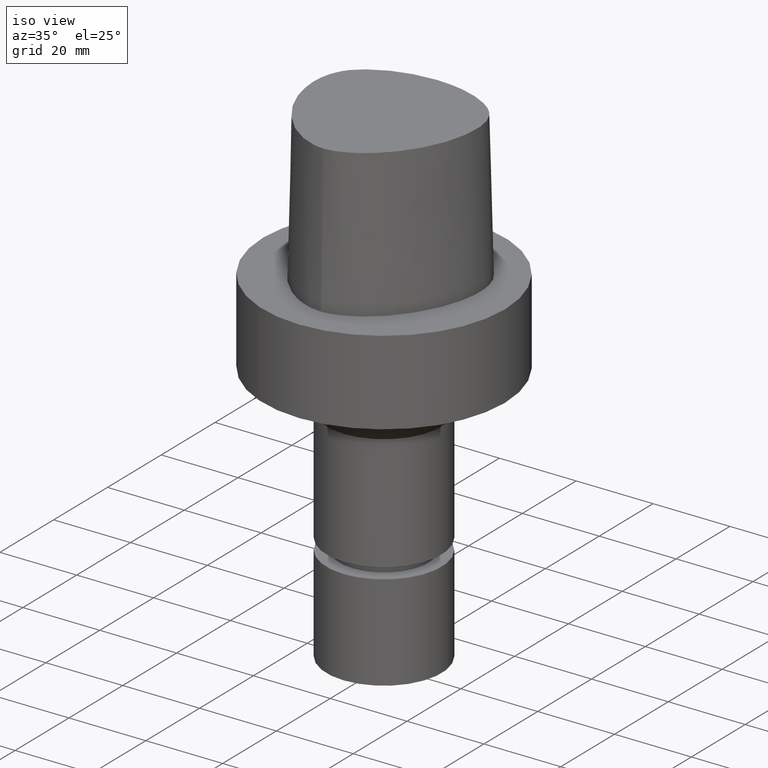
[diagram: clean part render]
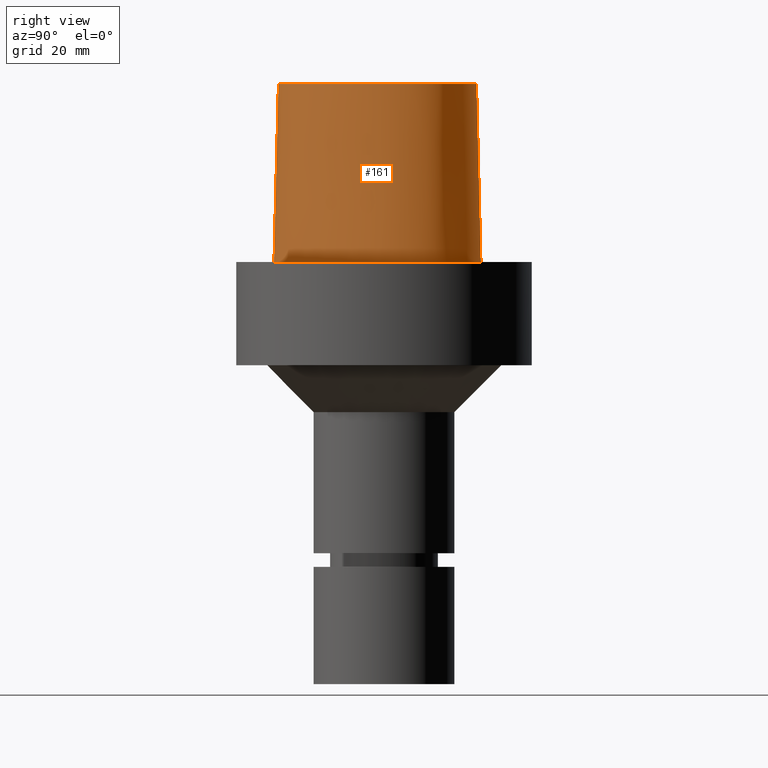
[diagram: tour spotlight — one face highlighted and labeled with its STEP entity id]
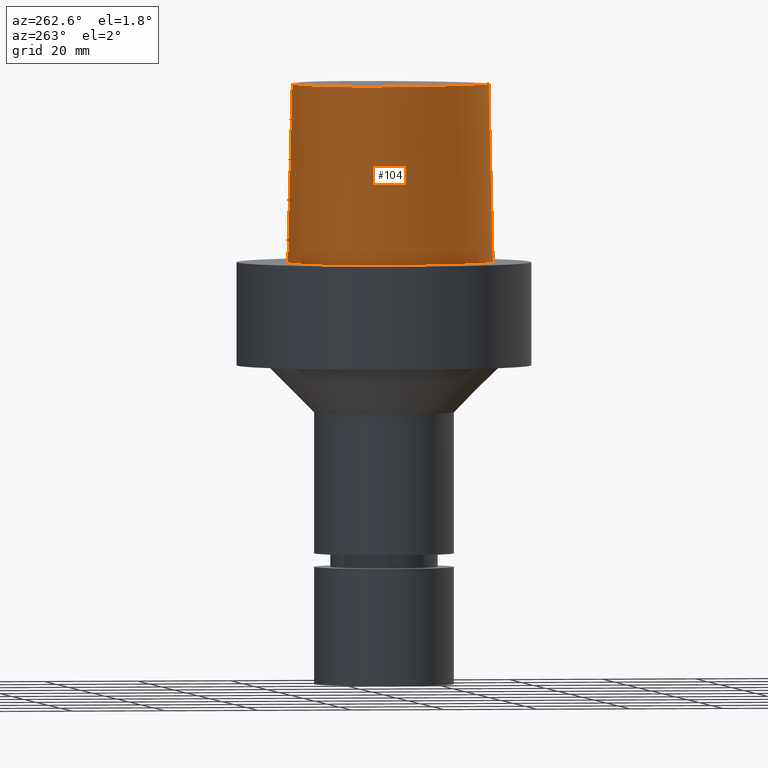
[diagram: tour spotlight — one face highlighted and labeled with its STEP entity id]
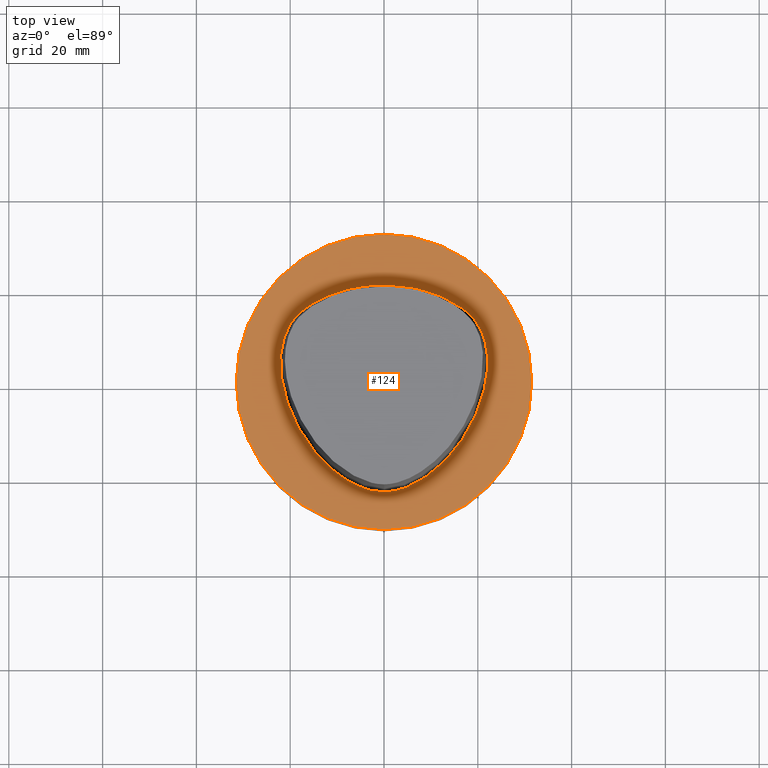
[diagram: tour spotlight — one face highlighted and labeled with its STEP entity id]
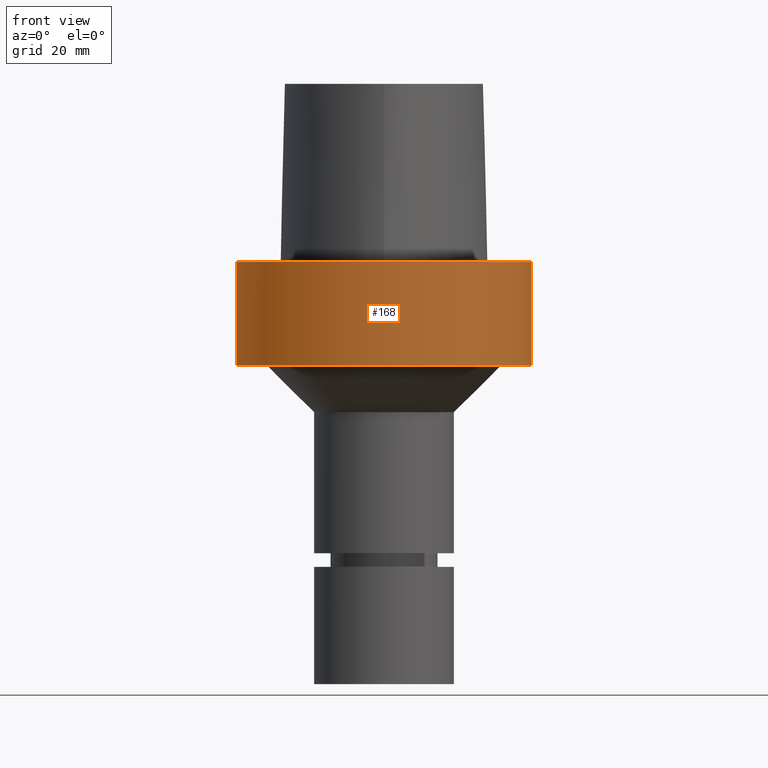
[diagram: tour spotlight — one face highlighted and labeled with its STEP entity id]
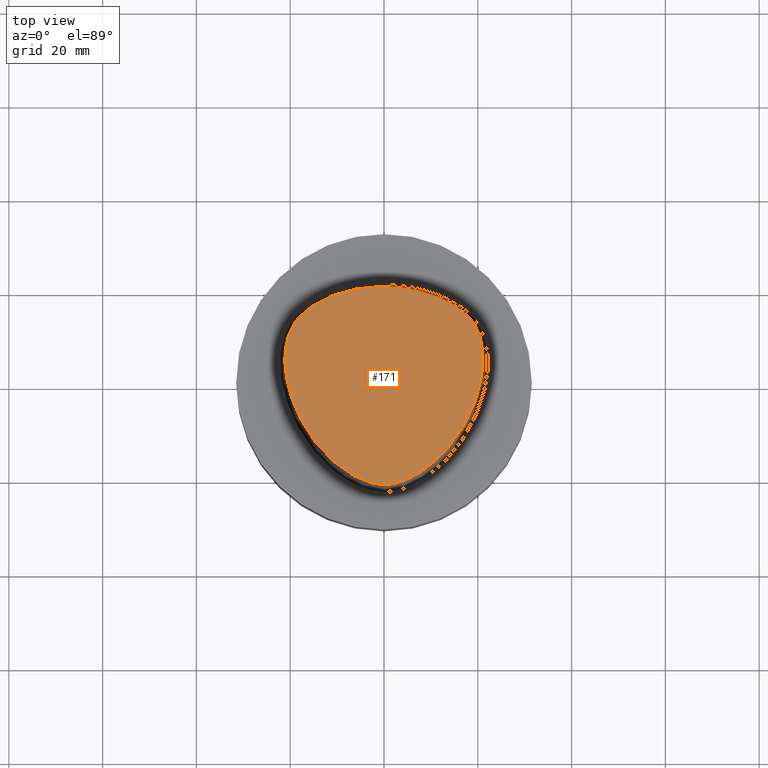
[diagram: tour spotlight — one face highlighted and labeled with its STEP entity id]
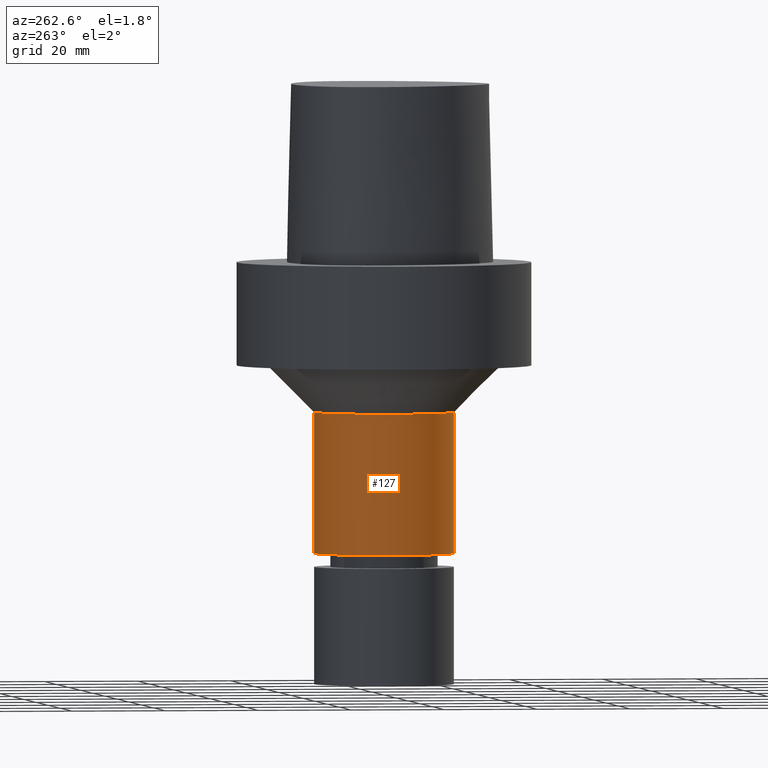
[diagram: tour spotlight — one face highlighted and labeled with its STEP entity id]
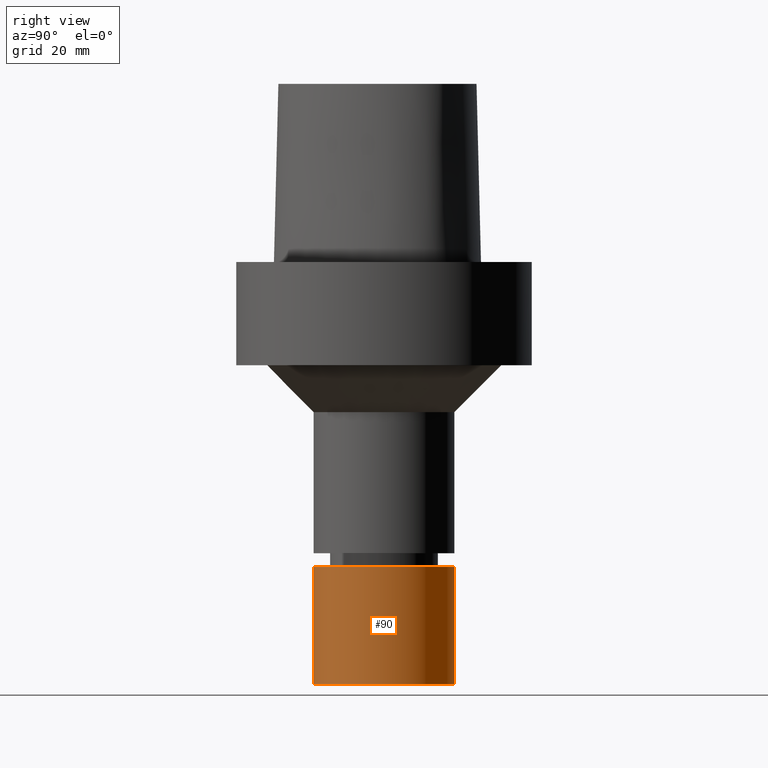
[diagram: tour spotlight — one face highlighted and labeled with its STEP entity id]
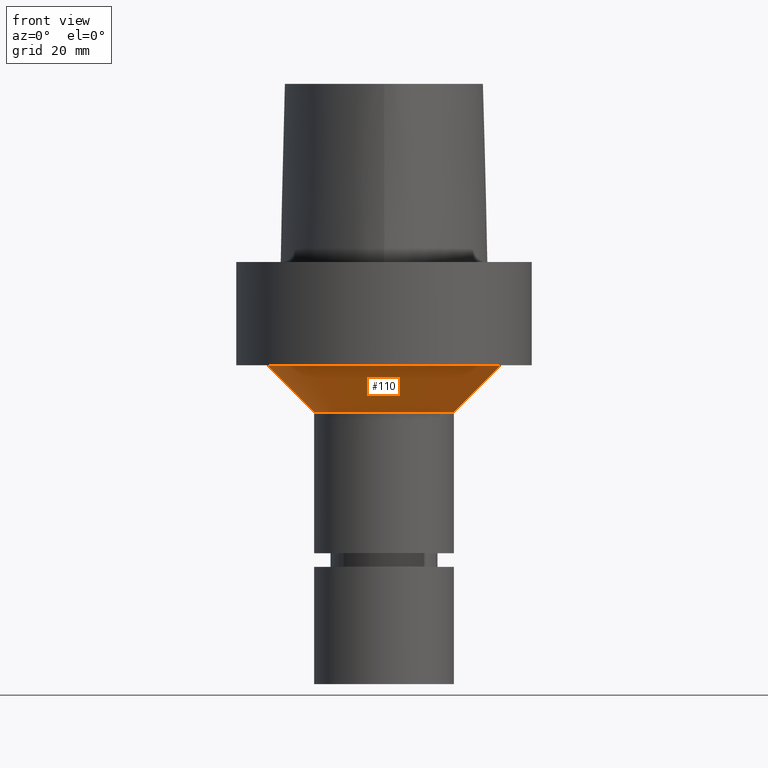
[diagram: tour spotlight — one face highlighted and labeled with its STEP entity id]
A machine part: a face-by-face anatomy tour. The part has 18 B-rep faces; the first image is the clean iso view, then the 8 largest visible faces are spotlighted one at a time (largest first), each with its STEP entity span.

Face 1 — right view, entity #161. In plain terms, the highlighted face is a freeform B-spline surface patch.
Definition (entity closure, byte-faithful):
#80=EDGE_CURVE('Unnamed[1]',#203,#204,#205,.T.);
#82=EDGE_CURVE('Unnamed[1]',#207,#208,#209,.T.);
#134=EDGE_CURVE('Unnamed[1]',#208,#204,#283,.T.);
#138=EDGE_CURVE('Unnamed[1]',#203,#207,#288,.T.);
#161=ADVANCED_FACE('Unnamed[1]',(#320),#321,.T.);
#203=VERTEX_POINT('',#364);
#204=VERTEX_POINT('',#365);
#205=LINE('',#366,#367);
#207=VERTEX_POINT('',#370);
#208=VERTEX_POINT('',#371);
#209=LINE('',#372,#373);
#283=B_SPLINE_CURVE_WITH_KNOTS('',3,(#571,#572,#573,#574,#575,#576,#577,#578,#579,#580,#581,#582,#583,#584,#585,#586,#587),.UNSPECIFIED.,.F.,.F.,(4,1,1,1,1,1,1,1,1,1,1,1,1,1,4),(-13.2302678617486,-12.816821991069,-12.4033761203893,-11.9899302497097,-11.57648437903,-11.1630385083504,-10.9563155730106,-10.7495926376707,-10.3361467669911,-9.92270089631145,-9.09580915495216,-8.26891741359287,-7.44202567223358,-7.02857980155394,-6.6151339308743),.UNSPECIFIED.);
#288=B_SPLINE_CURVE_WITH_KNOTS('',3,(#594,#595,#596,#597,#598,#599,#600,#601,#602,#603,#604,#605,#606,#607,#608,#609),.UNSPECIFIED.,.F.,.F.,(4,1,1,1,1,1,1,1,1,1,1,1,1,4),(6.61513393087476,6.99917207152274,7.48193246986995,7.96289324787093,8.45540287038584,9.10291653679981,9.67129810936083,10.1618749681153,10.6358867802489,11.1080734988593,11.6043706019633,12.09451993853,12.6985979284494,13.2302678617486),.UNSPECIFIED.);
#320=FACE_OUTER_BOUND('',#648,.T.);
#321=B_SPLINE_SURFACE_WITH_KNOTS('',3,3,((#649,#650,#651,#652),(#653,#654,#655,#656),(#657,#658,#659,#660),(#661,#662,#663,#664),(#665,#666,#667,#668),(#669,#670,#671,#672),(#673,#674,#675,#676),(#677,#678,#679,#680),(#681,#682,#683,#684),(#685,#686,#687,#688),(#689,#690,#691,#692),(#693,#694,#695,#696),(#697,#698,#699,#700),(#701,#702,#703,#704),(#705,#706,#707,#708),(#709,#710,#711,#712),(#713,#714,#715,#716)),.UNSPECIFIED.,.F.,.F.,.F.,(4,1,1,1,1,1,1,1,1,1,1,1,1,1,4),(4,4),(-13.2302678617486,-12.816821991069,-12.4033761203893,-11.9899302497097,-11.57648437903,-11.1630385083504,-10.9563155730106,-10.7495926376707,-10.3361467669911,-9.92270089631145,-9.09580915495216,-8.26891741359287,-7.44202567223358,-7.02857980155394,-6.6151339308743),(-3.8,0.0),.UNSPECIFIED.);
#364=CARTESIAN_POINT('',(0.038736923393866,-22.5191997536361,38.0));
#365=CARTESIAN_POINT('',(0.04359356758149,-23.4691235068931,7.78075697532443E-032));
#366=CARTESIAN_POINT('',(0.038736923393866,-22.5191997536361,38.0));
#367=VECTOR('',#749,38.0118715498723);
#370=CARTESIAN_POINT('',(-0.001218547003662,19.7276821925089,38.0));
#371=CARTESIAN_POINT('',(0.044682985379347,20.6765087343109,1.61778115328528E-031));
#372=CARTESIAN_POINT('',(-0.001218547003662,19.7276821925089,38.0));
#373=VECTOR('',#750,38.0118715503078);
#571=CARTESIAN_POINT('',(0.044682985379347,20.6765087343109,1.61778115328528E-031));
#572=CARTESIAN_POINT('',(1.42379272427753,20.6097915814392,8.62816615085482E-032));
#573=CARTESIAN_POINT('',(4.2230955003445,20.4837538303966,1.4791141972894E-031));
#574=CARTESIAN_POINT('',(8.47220762821777,19.6890432607088,9.86076131526265E-032));
#575=CARTESIAN_POINT('',(12.5141247708253,18.2434968480404,0.0));
#576=CARTESIAN_POINT('',(16.3038624872874,16.1734192182143,1.97215226305253E-031));
#577=CARTESIAN_POINT('',(19.1446913988473,13.7036723639434,-1.97215226305253E-031));
#578=CARTESIAN_POINT('',(20.7319894342149,11.1014620996188,0.0));
#579=CARTESIAN_POINT('',(21.7831756505763,8.28099229708081,-1.97215226305253E-031));
#580=CARTESIAN_POINT('',(22.2258240701438,4.60865440596506,0.0));
#581=CARTESIAN_POINT('',(21.7436130080666,-1.11326526354485,0.0));
#582=CARTESIAN_POINT('',(19.5519487660502,-7.95432366164584,0.0));
#583=CARTESIAN_POINT('',(14.9574167123838,-15.2089785567293,0.0));
#584=CARTESIAN_POINT('',(9.66840283021945,-20.0827414369705,-9.86076131526265E-032));
#585=CARTESIAN_POINT('',(4.51628650521788,-22.7946374572188,-9.86076131526265E-032));
#586=CARTESIAN_POINT('',(1.55867251738073,-23.4612972770043,-1.23259516440783E-032));
#587=CARTESIAN_POINT('',(0.04359356758149,-23.4691235068931,7.78075697532443E-032));
#594=CARTESIAN_POINT('',(0.038736923394311,-22.519199753636,38.0));
#595=CARTESIAN_POINT('',(1.31742058183662,-22.512662269405,38.0));
#596=CARTESIAN_POINT('',(4.2093773447498,-21.9116226439989,38.0));
#597=CARTESIAN_POINT('',(8.20895504542113,-19.7798683845067,38.0));
#598=CARTESIAN_POINT('',(11.9784633234593,-16.681663904162,38.0));
#599=CARTESIAN_POINT('',(15.5308821579362,-12.5807487594113,38.0));
#600=CARTESIAN_POINT('',(18.4566248438667,-7.64932246015528,38.0));
#601=CARTESIAN_POINT('',(20.4036090752029,-2.27012499825289,38.0));
#602=CARTESIAN_POINT('',(21.2357187429189,2.79891401173156,38.0));
#603=CARTESIAN_POINT('',(21.0811206267748,7.62543090736657,38.0));
#604=CARTESIAN_POINT('',(19.3383577336563,12.2772250726194,38.0));
#605=CARTESIAN_POINT('',(15.5796322014404,15.5799672120682,38.0));
#606=CARTESIAN_POINT('',(10.8392956074438,17.9834601687347,38.0));
#607=CARTESIAN_POINT('',(5.56068045850571,19.4586143858472,38.0));
#608=CARTESIAN_POINT('',(1.77223893711014,19.6418877095654,38.0));
#609=CARTESIAN_POINT('',(-0.001218367817519,19.7276822012873,38.0));
#648=EDGE_LOOP('',(#865,#866,#867,#868));
#649=CARTESIAN_POINT('',(-0.001218367817519,19.7276822012873,38.0));
#650=CARTESIAN_POINT('',(0.014082083248157,20.0439577123075,25.3333333333066));
#651=CARTESIAN_POINT('',(0.029382534313671,20.3602332232908,12.6666666666934));
#652=CARTESIAN_POINT('',(0.044682985379347,20.6765087343109,1.61778115328528E-031));
#653=CARTESIAN_POINT('',(1.37788651195108,19.6609652834875,38.0));
#654=CARTESIAN_POINT('',(1.3931885827258,19.9772407169847,25.3333333333066));
#655=CARTESIAN_POINT('',(1.40849065356095,20.2935162254648,12.6666666666934));
#656=CARTESIAN_POINT('',(1.42379272427753,20.6097915814392,8.62816615085482E-032));
#657=CARTESIAN_POINT('',(4.135446440878,19.5347778787784,38.0));
#658=CARTESIAN_POINT('',(4.16466278851883,19.8511031866125,25.3333333333066));
#659=CARTESIAN_POINT('',(4.1938791526746,20.1674284644204,12.6666666666934));
#660=CARTESIAN_POINT('',(4.2230955003445,20.4837538303966,1.4791141972894E-031));
#661=CARTESIAN_POINT('',(8.213607363795,18.7706026638736,38.0));
#662=CARTESIAN_POINT('',(8.29980745008421,19.0767495109635,25.3333333333066));
#663=CARTESIAN_POINT('',(8.38600751285747,19.3828964329996,12.6666666666934));
#664=CARTESIAN_POINT('',(8.47220762821777,19.6890432607088,9.86076131526265E-032));
#665=CARTESIAN_POINT('',(12.1316338645671,17.3698624840857,38.0));
#666=CARTESIAN_POINT('',(12.2591308270381,17.6610739397708,25.3333333333066));
#667=CARTESIAN_POINT('',(12.3866278083543,17.9522853923553,12.6666666666934));
#668=CARTESIAN_POINT('',(12.5141247708253,18.2434968480404,0.0));
#669=CARTESIAN_POINT('',(15.7706546153679,15.3789501349612,38.0));
#670=CARTESIAN_POINT('',(15.9483905900895,15.6437731794811,25.3333333333066));
#671=CARTESIAN_POINT('',(16.1261265513272,15.9085961736944,12.6666666666934));
#672=CARTESIAN_POINT('',(16.3038624872874,16.1734192182143,1.97215226305253E-031));
#673=CARTESIAN_POINT('',(18.4265894256284,13.0570022172893,38.0));
#674=CARTESIAN_POINT('',(18.6659567517146,13.2725589420689,25.3333333333066));
#675=CARTESIAN_POINT('',(18.9053240921419,13.4881156488541,12.6666666666934));
#676=CARTESIAN_POINT('',(19.1446913988473,13.7036723639434,-1.97215226305253E-031));
#677=CARTESIAN_POINT('',(19.8679958653038,10.6923771981998,38.0));
#678=CARTESIAN_POINT('',(20.1559937048299,10.8287388264873,25.3333333333066));
#679=CARTESIAN_POINT('',(20.4439915656177,10.965100461641,12.6666666666934));
#680=CARTESIAN_POINT('',(20.7319894342149,11.1014620996188,0.0));
#681=CARTESIAN_POINT('',(20.8470867582337,8.07149548576131,38.0));
#682=CARTESIAN_POINT('',(21.1591164072431,8.14132775555392,25.3333333333066));
#683=CARTESIAN_POINT('',(21.4711459821861,8.21116003697855,12.6666666666934));
#684=CARTESIAN_POINT('',(21.7831756505763,8.28099229708081,-1.97215226305253E-031));
#685=CARTESIAN_POINT('',(21.2693244256982,4.61157245650171,38.0));
#686=CARTESIAN_POINT('',(21.5881576801997,4.6105997689982,25.3333333333066));
#687=CARTESIAN_POINT('',(21.9069908544037,4.60962709346857,12.6666666666934));
#688=CARTESIAN_POINT('',(22.2258240701438,4.60865440596506,0.0));
#689=CARTESIAN_POINT('',(20.8071610855575,-0.912828649855193,38.0));
#690=CARTESIAN_POINT('',(21.119311671178,-0.979640884839481,25.3333333333066));
#691=CARTESIAN_POINT('',(21.4314624224461,-1.04645306732201,12.6666666666934));
#692=CARTESIAN_POINT('',(21.7436130080666,-1.11326526354485,0.0));
#693=CARTESIAN_POINT('',(18.6841935581315,-7.54428794252837,38.0));
#694=CARTESIAN_POINT('',(18.9734452551861,-7.6809665891091,25.3333333333066));
#695=CARTESIAN_POINT('',(19.2626970689956,-7.81764505382656,12.6666666666934));
#696=CARTESIAN_POINT('',(19.5519487660502,-7.95432366164584,0.0));
#697=CARTESIAN_POINT('',(14.2175552814,-14.5971504342323,38.0));
#698=CARTESIAN_POINT('',(14.4641757465198,-14.8010930946929,25.3333333333066));
#699=CARTESIAN_POINT('',(14.710796247264,-15.0050359737917,12.6666666666934));
#700=CARTESIAN_POINT('',(14.9574167123838,-15.2089785567293,0.0));
#701=CARTESIAN_POINT('',(9.0844808732933,-19.3179298129689,38.0));
#702=CARTESIAN_POINT('',(9.27912152349017,-19.572866915557,25.3333333333066));
#703=CARTESIAN_POINT('',(9.47376218971294,-19.827804295621,12.6666666666934));
#704=CARTESIAN_POINT('',(9.66840283021945,-20.0827414369705,-9.86076131526265E-032));
#705=CARTESIAN_POINT('',(4.17112919194182,-21.8987568152736,38.0));
#706=CARTESIAN_POINT('',(4.28618163483998,-22.1973837173649,25.3333333333066));
#707=CARTESIAN_POINT('',(4.40123406239433,-22.4960105163661,12.6666666666934));
#708=CARTESIAN_POINT('',(4.51628650521788,-22.7946374572188,-9.86076131526265E-032));
#709=CARTESIAN_POINT('',(1.41533654381097,-22.5120888467812,38.0));
#710=CARTESIAN_POINT('',(1.46311520162011,-22.8284916374445,25.3333333333066));
#711=CARTESIAN_POINT('',(1.51089385942236,-23.144894486341,12.6666666666934));
#712=CARTESIAN_POINT('',(1.55867251738073,-23.4612972770043,-1.23259516440783E-032));
#713=CARTESIAN_POINT('',(0.038736923393866,-22.5191997536361,38.0));
#714=CARTESIAN_POINT('',(0.04035580478973,-22.8358410047159,25.3333333333066));
#715=CARTESIAN_POINT('',(0.041974686185626,-23.1524822558133,12.6666666666934));
#716=CARTESIAN_POINT('',(0.04359356758149,-23.4691235068931,7.78075697532443E-032));
#749=DIRECTION('',(0.000127766510556,-0.024990186342461,-0.999687688361864));
#750=DIRECTION('',(0.001207557810519,0.024961321374199,-0.999687688350411));
#865=ORIENTED_EDGE('',*,*,#134,.F.);
#866=ORIENTED_EDGE('',*,*,#82,.F.);
#867=ORIENTED_EDGE('',*,*,#138,.F.);
#868=ORIENTED_EDGE('',*,*,#80,.T.);

Face 2 — auxiliary view, entity #104. In plain terms, the highlighted face is a freeform B-spline surface patch.
Definition (entity closure, byte-faithful):
#80=EDGE_CURVE('Unnamed[1]',#203,#204,#205,.T.);
#84=EDGE_CURVE('Unnamed[1]',#204,#211,#212,.T.);
#104=ADVANCED_FACE('Unnamed[1]',(#238),#239,.T.);
#121=EDGE_CURVE('Unnamed[1]',#207,#211,#264,.T.);
#132=EDGE_CURVE('Unnamed[1]',#207,#203,#281,.T.);
#203=VERTEX_POINT('',#364);
#204=VERTEX_POINT('',#365);
#205=LINE('',#366,#367);
#207=VERTEX_POINT('',#370);
#211=VERTEX_POINT('',#376);
#212=B_SPLINE_CURVE_WITH_KNOTS('',3,(#377,#378,#379,#380,#381,#382,#383,#384,#385,#386,#387,#388,#389,#390,#391,#392,#393,#394),.UNSPECIFIED.,.F.,.F.,(4,1,1,1,1,1,1,1,1,2,1,1,1,1,4),(-6.6151339308743,-6.20168806019465,-5.78824218951501,-5.37479631883537,-4.96135044815572,-4.13445870679644,-3.30756696543715,-2.89412109475751,-2.48067522407786,-2.06722935339822,-1.65378348271857,-1.24033761203893,-0.826891741359287,-0.413445870679644,0.0),.UNSPECIFIED.);
#238=FACE_OUTER_BOUND('',#427,.T.);
#239=B_SPLINE_SURFACE_WITH_KNOTS('',3,3,((#428,#429,#430,#431),(#432,#433,#434,#435),(#436,#437,#438,#439),(#440,#441,#442,#443),(#444,#445,#446,#447),(#448,#449,#450,#451),(#452,#453,#454,#455),(#456,#457,#458,#459),(#460,#461,#462,#463),(#464,#465,#466,#467),(#468,#469,#470,#471),(#472,#473,#474,#475),(#476,#477,#478,#479),(#480,#481,#482,#483),(#484,#485,#486,#487),(#488,#489,#490,#491),(#492,#493,#494,#495),(#496,#497,#498,#499)),.UNSPECIFIED.,.F.,.F.,.F.,(4,1,1,1,1,1,1,1,1,2,1,1,1,1,4),(4,4),(-6.6151339308743,-6.20168806019465,-5.78824218951501,-5.37479631883537,-4.96135044815572,-4.13445870679644,-3.30756696543715,-2.89412109475751,-2.48067522407786,-2.06722935339822,-1.65378348271857,-1.24033761203893,-0.826891741359287,-0.413445870679644,0.0),(-3.8,0.0),.UNSPECIFIED.);
#264=LINE('',#531,#532);
#281=B_SPLINE_CURVE_WITH_KNOTS('',3,(#553,#554,#555,#556,#557,#558,#559,#560,#561,#562,#563,#564,#565,#566,#567,#568),.UNSPECIFIED.,.F.,.F.,(4,1,1,1,1,1,1,1,1,1,1,1,1,4),(0.0,0.447924670568964,0.9388024242536,1.50591409090711,2.07314340012323,2.72424957442464,3.2253501842849,3.80982102049476,4.34867996267067,4.85900173381144,5.37972031856977,6.03459825488646,6.61113557741484,6.61513393087395),.UNSPECIFIED.);
#364=CARTESIAN_POINT('',(0.038736923393866,-22.5191997536361,38.0));
#365=CARTESIAN_POINT('',(0.04359356758149,-23.4691235068931,7.78075697532443E-032));
#366=CARTESIAN_POINT('',(0.038736923393866,-22.5191997536361,38.0));
#367=VECTOR('',#749,38.0118715498723);
#370=CARTESIAN_POINT('',(-0.001218547003662,19.7276821925089,38.0));
#376=CARTESIAN_POINT('',(-0.045171994691285,20.6766009553285,1.6755590516169E-031));
#377=CARTESIAN_POINT('',(0.04359356758149,-23.4691235068931,7.78075697532443E-032));
#378=CARTESIAN_POINT('',(-1.4714994713963,-23.4767895315797,2.46519032881566E-032));
#379=CARTESIAN_POINT('',(-4.43923476371401,-22.821149804767,-4.93038065763132E-032));
#380=CARTESIAN_POINT('',(-8.35043230079961,-20.8000751253325,-9.86076131526265E-032));
#381=CARTESIAN_POINT('',(-11.744900222602,-18.1556117874078,-1.97215226305253E-031));
#382=CARTESIAN_POINT('',(-15.6989602501314,-14.0406306929147,-1.97215226305253E-031));
#383=CARTESIAN_POINT('',(-19.5352875070682,-8.00624990770787,1.97215226305253E-031));
#384=CARTESIAN_POINT('',(-21.7205626190491,-1.16081708945282,0.0));
#385=CARTESIAN_POINT('',(-22.2486616783342,4.54965558738736,0.0));
#386=CARTESIAN_POINT('',(-21.6646421256468,9.00229539124618,0.0));
#387=CARTESIAN_POINT('',(-20.3945635471922,11.7780544971003,0.0));
#388=CARTESIAN_POINT('',(-18.5925528034471,14.1980602922581,0.0));
#389=CARTESIAN_POINT('',(-16.3226584122258,16.1777748720707,0.0));
#390=CARTESIAN_POINT('',(-12.5076407874579,18.2524201541303,9.86076131526265E-032));
#391=CARTESIAN_POINT('',(-8.46776192107786,19.679114377952,9.86076131526265E-032));
#392=CARTESIAN_POINT('',(-4.23043497193604,20.487781597334,1.97215226305253E-031));
#393=CARTESIAN_POINT('',(-1.42313094248379,20.6127745766442,1.10933564796705E-031));
#394=CARTESIAN_POINT('',(-0.045171994691285,20.6766009553285,1.6755590516169E-031));
#427=EDGE_LOOP('',(#776,#777,#778,#779));
#428=CARTESIAN_POINT('',(0.038736923393866,-22.5191997536361,38.0));
#429=CARTESIAN_POINT('',(0.04035580478973,-22.8358410047159,25.3333333333066));
#430=CARTESIAN_POINT('',(0.041974686185626,-23.1524822558133,12.6666666666934));
#431=CARTESIAN_POINT('',(0.04359356758149,-23.4691235068931,7.78075697532443E-032));
#432=CARTESIAN_POINT('',(-1.33786123484754,-22.5261650259856,38.0));
#433=CARTESIAN_POINT('',(-1.38240731367927,-22.8430399310626,25.3333333333066));
#434=CARTESIAN_POINT('',(-1.42695339249092,-23.1599147815484,12.6666666666934));
#435=CARTESIAN_POINT('',(-1.4714994713963,-23.4767895315797,2.46519032881566E-032));
#436=CARTESIAN_POINT('',(-4.08909358431842,-21.9268839879558,38.0));
#437=CARTESIAN_POINT('',(-4.20580731135515,-22.2249725500078,25.3333333333066));
#438=CARTESIAN_POINT('',(-4.32252104640446,-22.5230611651922,12.6666666666934));
#439=CARTESIAN_POINT('',(-4.43923476371401,-22.821149804767,-4.93038065763132E-032));
#440=CARTESIAN_POINT('',(-7.8333083619947,-19.9973514861616,38.0));
#441=CARTESIAN_POINT('',(-8.00568301809614,-20.2649260859405,25.3333333333066));
#442=CARTESIAN_POINT('',(-8.1780576640789,-20.532500564315,12.6666666666934));
#443=CARTESIAN_POINT('',(-8.35043230079961,-20.8000751253325,-9.86076131526265E-032));
#444=CARTESIAN_POINT('',(-11.1035071147626,-17.450554957873,38.0));
#445=CARTESIAN_POINT('',(-11.3173048160562,-17.6855739222454,25.3333333333066));
#446=CARTESIAN_POINT('',(-11.5311025116181,-17.9205928617968,12.6666666666934));
#447=CARTESIAN_POINT('',(-11.744900222602,-18.1556117874078,-1.97215226305253E-031));
#448=CARTESIAN_POINT('',(-14.9379535189057,-13.461132049697,38.0));
#449=CARTESIAN_POINT('',(-15.191622410671,-13.6542981711372,25.3333333333066));
#450=CARTESIAN_POINT('',(-15.4452913389853,-13.8474645327131,12.6666666666934));
#451=CARTESIAN_POINT('',(-15.6989602501314,-14.0406306929147,-1.97215226305253E-031));
#452=CARTESIAN_POINT('',(-18.6681263017223,-7.59391757463204,38.0));
#453=CARTESIAN_POINT('',(-18.9571800800711,-7.73136168081928,25.3333333333066));
#454=CARTESIAN_POINT('',(-19.2462337287194,-7.86880572399774,12.6666666666934));
#455=CARTESIAN_POINT('',(-19.5352875070682,-8.00624990770787,1.97215226305253E-031));
#456=CARTESIAN_POINT('',(-20.7857899858339,-0.952862819790525,38.0));
#457=CARTESIAN_POINT('',(-21.0973808305434,-1.02218087467418,25.3333333333066));
#458=CARTESIAN_POINT('',(-21.408971677436,-1.09149899580772,12.6666666666934));
#459=CARTESIAN_POINT('',(-21.7205626190491,-1.16081708945282,0.0));
#460=CARTESIAN_POINT('',(-21.2911760556836,4.5469215763113,38.0));
#461=CARTESIAN_POINT('',(-21.610337904926,4.54783292082248,25.3333333333066));
#462=CARTESIAN_POINT('',(-21.9294998290918,4.54874426225691,12.6666666666934));
#463=CARTESIAN_POINT('',(-22.2486616783342,4.54965558738736,0.0));
#464=CARTESIAN_POINT('',(-20.7345309521958,8.74909381391006,38.0));
#465=CARTESIAN_POINT('',(-21.0445680426217,8.83349432450556,25.3333333333066));
#466=CARTESIAN_POINT('',(-21.3546050933631,8.91789488065068,12.6666666666934));
#467=CARTESIAN_POINT('',(-21.6646421256468,9.00229539124618,0.0));
#468=CARTESIAN_POINT('',(-19.5531512296439,11.3174844040833,38.0));
#469=CARTESIAN_POINT('',(-19.8336219699984,11.4710077674213,25.3333333333066));
#470=CARTESIAN_POINT('',(-20.1140927680763,11.6245311337623,12.6666666666934));
#471=CARTESIAN_POINT('',(-20.3945635471922,11.7780544971003,0.0));
#472=CARTESIAN_POINT('',(-17.9100913688793,13.524027510437,38.0));
#473=CARTESIAN_POINT('',(-18.1375785458768,13.7487051053655,25.3333333333066));
#474=CARTESIAN_POINT('',(-18.365065665211,13.9733826973296,12.6666666666934));
#475=CARTESIAN_POINT('',(-18.5925528034471,14.1980602922581,0.0));
#476=CARTESIAN_POINT('',(-15.7996349656398,15.3762170634413,38.0));
#477=CARTESIAN_POINT('',(-15.9739761051783,15.6434029846179,25.3333333333066));
#478=CARTESIAN_POINT('',(-16.1483172726872,15.9105889315134,12.6666666666934));
#479=CARTESIAN_POINT('',(-16.3226584122258,16.1777748720707,0.0));
#480=CARTESIAN_POINT('',(-12.1175640002064,17.3825162484012,38.0));
#481=CARTESIAN_POINT('',(-12.2475895903055,17.6724842099619,25.3333333333066));
#482=CARTESIAN_POINT('',(-12.3776152070492,17.9624521925696,12.6666666666934));
#483=CARTESIAN_POINT('',(-12.5076407874579,18.2524201541303,9.86076131526265E-032));
#484=CARTESIAN_POINT('',(-8.21761151654222,18.7588585989994,38.0));
#485=CARTESIAN_POINT('',(-8.30099497910627,19.0656105427881,25.3333333333066));
#486=CARTESIAN_POINT('',(-8.38437843913309,19.3723624535439,12.6666666666934));
#487=CARTESIAN_POINT('',(-8.46776192107786,19.679114377952,9.86076131526265E-032));
#488=CARTESIAN_POINT('',(-4.13466093881225,19.5396850837055,38.0));
#489=CARTESIAN_POINT('',(-4.16658562115465,19.8557172636973,25.3333333333066));
#490=CARTESIAN_POINT('',(-4.19851029939059,20.1717494367229,12.6666666666934));
#491=CARTESIAN_POINT('',(-4.23043497193604,20.487781597334,1.97215226305253E-031));
#492=CARTESIAN_POINT('',(-1.37917220403684,19.6638560588908,38.0));
#493=CARTESIAN_POINT('',(-1.39382511685176,19.98016223565,25.3333333333066));
#494=CARTESIAN_POINT('',(-1.40847802945569,20.296468399885,12.6666666666934));
#495=CARTESIAN_POINT('',(-1.42313094248379,20.6127745766442,1.10933564796705E-031));
#496=CARTESIAN_POINT('',(-0.001218547003662,19.7276821925089,38.0));
#497=CARTESIAN_POINT('',(-0.015869696232855,20.043988446791,25.3333333333066));
#498=CARTESIAN_POINT('',(-0.030520845462092,20.3602947010464,12.6666666666934));
#499=CARTESIAN_POINT('',(-0.045171994691285,20.6766009553285,1.6755590516169E-031));
#531=CARTESIAN_POINT('',(-0.001218547003662,19.7276821925089,38.0));
#532=VECTOR('',#808,38.0118715498723);
#553=CARTESIAN_POINT('',(-0.001218547003662,19.7276821925089,38.0));
#554=CARTESIAN_POINT('',(-1.49408492138443,19.6585333605309,38.0));
#555=CARTESIAN_POINT('',(-4.62297391420352,19.513604770166,38.0));
#556=CARTESIAN_POINT('',(-9.56160616752212,18.4291575730197,38.0));
#557=CARTESIAN_POINT('',(-14.5427684976927,16.2697452580488,38.0));
#558=CARTESIAN_POINT('',(-19.4315563551602,12.5302108980807,38.0));
#559=CARTESIAN_POINT('',(-21.306358833612,6.76352894547076,38.0));
#560=CARTESIAN_POINT('',(-21.0724946936277,0.957075236984038,38.0));
#561=CARTESIAN_POINT('',(-19.7876470880144,-4.34628503581652,38.0));
#562=CARTESIAN_POINT('',(-17.5396999600095,-9.33314444653089,38.0));
#563=CARTESIAN_POINT('',(-14.645447733857,-13.7185760345629,38.0));
#564=CARTESIAN_POINT('',(-10.7996726536643,-17.856257282137,38.0));
#565=CARTESIAN_POINT('',(-6.00479510196376,-21.2687382067675,38.0));
#566=CARTESIAN_POINT('',(-1.90747171908525,-22.5250621415864,38.0));
#567=CARTESIAN_POINT('',(0.025424107066464,-22.5192678176378,38.0));
#568=CARTESIAN_POINT('',(0.038736923394311,-22.519199753636,38.0));
#749=DIRECTION('',(0.000127766510556,-0.024990186342461,-0.999687688361864));
#776=ORIENTED_EDGE('',*,*,#84,.F.);
#777=ORIENTED_EDGE('',*,*,#80,.F.);
#778=ORIENTED_EDGE('',*,*,#132,.F.);
#779=ORIENTED_EDGE('',*,*,#121,.T.);
#808=DIRECTION('',(-0.001156308434589,0.02496374748543,-0.999687688361864));

Face 3 — top view, entity #124. In plain terms, the highlighted planar face has unit normal (-0, 0, 1).
Definition (entity closure, byte-faithful):
#75=EDGE_CURVE('Unnamed[1]',#195,#195,#196,.T.);
#84=EDGE_CURVE('Unnamed[1]',#204,#211,#212,.T.);
#99=EDGE_CURVE('Unnamed[1]',#211,#208,#232,.T.);
#124=ADVANCED_FACE('Unnamed[1]',(#267,#268),#269,.T.);
#134=EDGE_CURVE('Unnamed[1]',#208,#204,#283,.T.);
#195=VERTEX_POINT('',#354);
#196=CIRCLE('',#355,31.5);
#204=VERTEX_POINT('',#365);
#208=VERTEX_POINT('',#371);
#211=VERTEX_POINT('',#376);
#212=B_SPLINE_CURVE_WITH_KNOTS('',3,(#377,#378,#379,#380,#381,#382,#383,#384,#385,#386,#387,#388,#389,#390,#391,#392,#393,#394),.UNSPECIFIED.,.F.,.F.,(4,1,1,1,1,1,1,1,1,2,1,1,1,1,4),(-6.6151339308743,-6.20168806019465,-5.78824218951501,-5.37479631883537,-4.96135044815572,-4.13445870679644,-3.30756696543715,-2.89412109475751,-2.48067522407786,-2.06722935339822,-1.65378348271857,-1.24033761203893,-0.826891741359287,-0.413445870679644,0.0),.UNSPECIFIED.);
#232=CIRCLE('',#419,0.949936168436318);
#267=FACE_BOUND('',#536,.T.);
#268=FACE_OUTER_BOUND('',#537,.T.);
#269=PLANE('',#538);
#283=B_SPLINE_CURVE_WITH_KNOTS('',3,(#571,#572,#573,#574,#575,#576,#577,#578,#579,#580,#581,#582,#583,#584,#585,#586,#587),.UNSPECIFIED.,.F.,.F.,(4,1,1,1,1,1,1,1,1,1,1,1,1,1,4),(-13.2302678617486,-12.816821991069,-12.4033761203893,-11.9899302497097,-11.57648437903,-11.1630385083504,-10.9563155730106,-10.7495926376707,-10.3361467669911,-9.92270089631145,-9.09580915495216,-8.26891741359287,-7.44202567223358,-7.02857980155394,-6.6151339308743),.UNSPECIFIED.);
#354=CARTESIAN_POINT('',(-3.88267476788467E-031,31.5,3.85763741731416E-015));
#355=AXIS2_PLACEMENT_3D('',#740,#741,#742);
#365=CARTESIAN_POINT('',(0.04359356758149,-23.4691235068931,7.78075697532443E-032));
#371=CARTESIAN_POINT('',(0.044682985379347,20.6765087343109,1.61778115328528E-031));
#376=CARTESIAN_POINT('',(-0.045171994691285,20.6766009553285,1.6755590516169E-031));
#377=CARTESIAN_POINT('',(0.04359356758149,-23.4691235068931,7.78075697532443E-032));
#378=CARTESIAN_POINT('',(-1.4714994713963,-23.4767895315797,2.46519032881566E-032));
#379=CARTESIAN_POINT('',(-4.43923476371401,-22.821149804767,-4.93038065763132E-032));
#380=CARTESIAN_POINT('',(-8.35043230079961,-20.8000751253325,-9.86076131526265E-032));
#381=CARTESIAN_POINT('',(-11.744900222602,-18.1556117874078,-1.97215226305253E-031));
#382=CARTESIAN_POINT('',(-15.6989602501314,-14.0406306929147,-1.97215226305253E-031));
#383=CARTESIAN_POINT('',(-19.5352875070682,-8.00624990770787,1.97215226305253E-031));
#384=CARTESIAN_POINT('',(-21.7205626190491,-1.16081708945282,0.0));
#385=CARTESIAN_POINT('',(-22.2486616783342,4.54965558738736,0.0));
#386=CARTESIAN_POINT('',(-21.6646421256468,9.00229539124618,0.0));
#387=CARTESIAN_POINT('',(-20.3945635471922,11.7780544971003,0.0));
#388=CARTESIAN_POINT('',(-18.5925528034471,14.1980602922581,0.0));
#389=CARTESIAN_POINT('',(-16.3226584122258,16.1777748720707,0.0));
#390=CARTESIAN_POINT('',(-12.5076407874579,18.2524201541303,9.86076131526265E-032));
#391=CARTESIAN_POINT('',(-8.46776192107786,19.679114377952,9.86076131526265E-032));
#392=CARTESIAN_POINT('',(-4.23043497193604,20.487781597334,1.97215226305253E-031));
#393=CARTESIAN_POINT('',(-1.42313094248379,20.6127745766442,1.10933564796705E-031));
#394=CARTESIAN_POINT('',(-0.045171994691285,20.6766009553285,1.6755590516169E-031));
#419=AXIS2_PLACEMENT_3D('',#769,#770,#771);
#536=EDGE_LOOP('',(#810,#811,#812));
#537=EDGE_LOOP('',(#813));
#538=AXIS2_PLACEMENT_3D('',#814,#815,#816);
#571=CARTESIAN_POINT('',(0.044682985379347,20.6765087343109,1.61778115328528E-031));
#572=CARTESIAN_POINT('',(1.42379272427753,20.6097915814392,8.62816615085482E-032));
#573=CARTESIAN_POINT('',(4.2230955003445,20.4837538303966,1.4791141972894E-031));
#574=CARTESIAN_POINT('',(8.47220762821777,19.6890432607088,9.86076131526265E-032));
#575=CARTESIAN_POINT('',(12.5141247708253,18.2434968480404,0.0));
#576=CARTESIAN_POINT('',(16.3038624872874,16.1734192182143,1.97215226305253E-031));
#577=CARTESIAN_POINT('',(19.1446913988473,13.7036723639434,-1.97215226305253E-031));
#578=CARTESIAN_POINT('',(20.7319894342149,11.1014620996188,0.0));
#579=CARTESIAN_POINT('',(21.7831756505763,8.28099229708081,-1.97215226305253E-031));
#580=CARTESIAN_POINT('',(22.2258240701438,4.60865440596506,0.0));
#581=CARTESIAN_POINT('',(21.7436130080666,-1.11326526354485,0.0));
#582=CARTESIAN_POINT('',(19.5519487660502,-7.95432366164584,0.0));
#583=CARTESIAN_POINT('',(14.9574167123838,-15.2089785567293,0.0));
#584=CARTESIAN_POINT('',(9.66840283021945,-20.0827414369705,-9.86076131526265E-032));
#585=CARTESIAN_POINT('',(4.51628650521788,-22.7946374572188,-9.86076131526265E-032));
#586=CARTESIAN_POINT('',(1.55867251738073,-23.4612972770043,-1.23259516440783E-032));
#587=CARTESIAN_POINT('',(0.04359356758149,-23.4691235068931,7.78075697532443E-032));
#740=CARTESIAN_POINT('',(0.0,0.0,0.0));
#741=DIRECTION('',(6.12323399573677E-017,1.22464679914735E-016,-1.0));
#742=DIRECTION('',(-1.23259516440783E-032,1.0,1.22464679914735E-016));
#769=CARTESIAN_POINT('',(-0.001218547003662,19.7276821925089,5.52449413963128E-015));
#770=DIRECTION('',(6.12323399573677E-017,-1.03104442548789E-016,-1.0));
#771=DIRECTION('',(-0.046269895968506,0.998928974816059,-1.05827229093978E-016));
#810=ORIENTED_EDGE('',*,*,#134,.T.);
#811=ORIENTED_EDGE('',*,*,#84,.T.);
#812=ORIENTED_EDGE('',*,*,#99,.T.);
#813=ORIENTED_EDGE('',*,*,#75,.F.);
#814=CARTESIAN_POINT('',(-4.11674710145736E-031,15.75,5.48153238745758E-015));
#815=DIRECTION('',(-6.12323399573677E-017,1.03104442548789E-016,1.0));
#816=DIRECTION('',(-1.48617354649328E-033,-1.0,1.03104442548789E-016));

Face 4 — front view, entity #168. In plain terms, the highlighted cylindrical surface (bore or boss wall) has radius 31.5 mm, axis along (0, 0, -1).
Definition (entity closure, byte-faithful):
#75=EDGE_CURVE('Unnamed[1]',#195,#195,#196,.T.);
#112=EDGE_CURVE('Unnamed[1]',#250,#250,#251,.T.);
#168=ADVANCED_FACE('Unnamed[1]',(#330,#331),#332,.T.);
#195=VERTEX_POINT('',#354);
#196=CIRCLE('',#355,31.5);
#250=VERTEX_POINT('',#513);
#251=CIRCLE('',#514,31.5);
#330=FACE_BOUND('',#728,.T.);
#331=FACE_BOUND('',#729,.T.);
#332=CYLINDRICAL_SURFACE('',#730,31.5);
#354=CARTESIAN_POINT('',(-3.88267476788467E-031,31.5,3.85763741731416E-015));
#355=AXIS2_PLACEMENT_3D('',#740,#741,#742);
#513=CARTESIAN_POINT('',(1.34711147906212E-015,31.5,-22.0000000000006));
#514=AXIS2_PLACEMENT_3D('',#793,#794,#795);
#728=EDGE_LOOP('',(#876));
#729=EDGE_LOOP('',(#877));
#730=AXIS2_PLACEMENT_3D('',#878,#879,#880);
#740=CARTESIAN_POINT('',(0.0,0.0,0.0));
#741=DIRECTION('',(6.12323399573677E-017,1.22464679914735E-016,-1.0));
#742=DIRECTION('',(-1.23259516440783E-032,1.0,1.22464679914735E-016));
#793=CARTESIAN_POINT('',(1.34711147906212E-015,2.69422295812425E-015,-22.0000000000006));
#794=DIRECTION('',(6.12323399573677E-017,1.22464679914735E-016,-1.0));
#795=DIRECTION('',(-1.23259516440783E-032,1.0,1.22464679914735E-016));
#876=ORIENTED_EDGE('',*,*,#112,.F.);
#877=ORIENTED_EDGE('',*,*,#75,.T.);
#878=CARTESIAN_POINT('',(6.73555739531062E-016,1.34711147906212E-015,-11.0000000000003));
#879=DIRECTION('',(6.12323399573677E-017,1.22464679914735E-016,-1.0));
#880=DIRECTION('',(-1.23259516440783E-032,1.0,1.22464679914735E-016));

Face 5 — top view, entity #171. In plain terms, the highlighted planar face has unit normal (-0, 0, 1).
Definition (entity closure, byte-faithful):
#132=EDGE_CURVE('Unnamed[1]',#207,#203,#281,.T.);
#138=EDGE_CURVE('Unnamed[1]',#203,#207,#288,.T.);
#171=ADVANCED_FACE('Unnamed[1]',(#335),#336,.T.);
#203=VERTEX_POINT('',#364);
#207=VERTEX_POINT('',#370);
#281=B_SPLINE_CURVE_WITH_KNOTS('',3,(#553,#554,#555,#556,#557,#558,#559,#560,#561,#562,#563,#564,#565,#566,#567,#568),.UNSPECIFIED.,.F.,.F.,(4,1,1,1,1,1,1,1,1,1,1,1,1,4),(0.0,0.447924670568964,0.9388024242536,1.50591409090711,2.07314340012323,2.72424957442464,3.2253501842849,3.80982102049476,4.34867996267067,4.85900173381144,5.37972031856977,6.03459825488646,6.61113557741484,6.61513393087395),.UNSPECIFIED.);
#288=B_SPLINE_CURVE_WITH_KNOTS('',3,(#594,#595,#596,#597,#598,#599,#600,#601,#602,#603,#604,#605,#606,#607,#608,#609),.UNSPECIFIED.,.F.,.F.,(4,1,1,1,1,1,1,1,1,1,1,1,1,4),(6.61513393087476,6.99917207152274,7.48193246986995,7.96289324787093,8.45540287038584,9.10291653679981,9.67129810936083,10.1618749681153,10.6358867802489,11.1080734988593,11.6043706019633,12.09451993853,12.6985979284494,13.2302678617486),.UNSPECIFIED.);
#335=FACE_OUTER_BOUND('',#734,.T.);
#336=PLANE('',#735);
#364=CARTESIAN_POINT('',(0.038736923393866,-22.5191997536361,38.0));
#370=CARTESIAN_POINT('',(-0.001218547003662,19.7276821925089,38.0));
#553=CARTESIAN_POINT('',(-0.001218547003662,19.7276821925089,38.0));
#554=CARTESIAN_POINT('',(-1.49408492138443,19.6585333605309,38.0));
#555=CARTESIAN_POINT('',(-4.62297391420352,19.513604770166,38.0));
#556=CARTESIAN_POINT('',(-9.56160616752212,18.4291575730197,38.0));
#557=CARTESIAN_POINT('',(-14.5427684976927,16.2697452580488,38.0));
#558=CARTESIAN_POINT('',(-19.4315563551602,12.5302108980807,38.0));
#559=CARTESIAN_POINT('',(-21.306358833612,6.76352894547076,38.0));
#560=CARTESIAN_POINT('',(-21.0724946936277,0.957075236984038,38.0));
#561=CARTESIAN_POINT('',(-19.7876470880144,-4.34628503581652,38.0));
#562=CARTESIAN_POINT('',(-17.5396999600095,-9.33314444653089,38.0));
#563=CARTESIAN_POINT('',(-14.645447733857,-13.7185760345629,38.0));
#564=CARTESIAN_POINT('',(-10.7996726536643,-17.856257282137,38.0));
#565=CARTESIAN_POINT('',(-6.00479510196376,-21.2687382067675,38.0));
#566=CARTESIAN_POINT('',(-1.90747171908525,-22.5250621415864,38.0));
#567=CARTESIAN_POINT('',(0.025424107066464,-22.5192678176378,38.0));
#568=CARTESIAN_POINT('',(0.038736923394311,-22.519199753636,38.0));
#594=CARTESIAN_POINT('',(0.038736923394311,-22.519199753636,38.0));
#595=CARTESIAN_POINT('',(1.31742058183662,-22.512662269405,38.0));
#596=CARTESIAN_POINT('',(4.2093773447498,-21.9116226439989,38.0));
#597=CARTESIAN_POINT('',(8.20895504542113,-19.7798683845067,38.0));
#598=CARTESIAN_POINT('',(11.9784633234593,-16.681663904162,38.0));
#599=CARTESIAN_POINT('',(15.5308821579362,-12.5807487594113,38.0));
#600=CARTESIAN_POINT('',(18.4566248438667,-7.64932246015528,38.0));
#601=CARTESIAN_POINT('',(20.4036090752029,-2.27012499825289,38.0));
#602=CARTESIAN_POINT('',(21.2357187429189,2.79891401173156,38.0));
#603=CARTESIAN_POINT('',(21.0811206267748,7.62543090736657,38.0));
#604=CARTESIAN_POINT('',(19.3383577336563,12.2772250726194,38.0));
#605=CARTESIAN_POINT('',(15.5796322014404,15.5799672120682,38.0));
#606=CARTESIAN_POINT('',(10.8392956074438,17.9834601687347,38.0));
#607=CARTESIAN_POINT('',(5.56068045850571,19.4586143858472,38.0));
#608=CARTESIAN_POINT('',(1.77223893711014,19.6418877095654,38.0));
#609=CARTESIAN_POINT('',(-0.001218367817519,19.7276822012873,38.0));
#734=EDGE_LOOP('',(#882,#883));
#735=AXIS2_PLACEMENT_3D('',#884,#885,#886);
#882=ORIENTED_EDGE('',*,*,#132,.T.);
#883=ORIENTED_EDGE('',*,*,#138,.T.);
#884=CARTESIAN_POINT('',(0.008647668684817,1.77491953635526,38.0));
#885=DIRECTION('',(-0.0,2.95577857036584E-049,1.0));
#886=DIRECTION('',(1.0,0.0,0.0));

Face 6 — auxiliary view, entity #127. In plain terms, the highlighted cylindrical surface (bore or boss wall) has radius 15 mm, axis along (0, 0, -1).
Definition (entity closure, byte-faithful):
#97=EDGE_CURVE('Unnamed[1]',#229,#229,#230,.T.);
#127=ADVANCED_FACE('Unnamed[1]',(#272,#273),#274,.T.);
#165=EDGE_CURVE('Unnamed[1]',#326,#326,#327,.T.);
#229=VERTEX_POINT('',#415);
#230=CIRCLE('',#416,15.0000000000001);
#272=FACE_BOUND('',#542,.T.);
#273=FACE_BOUND('',#543,.T.);
#274=CYLINDRICAL_SURFACE('',#544,15.0000000000002);
#326=VERTEX_POINT('',#723);
#327=CIRCLE('',#724,15.0000000000002);
#415=CARTESIAN_POINT('',(1.9594348786358E-015,15.0000000000001,-32.0000000000006));
#416=AXIS2_PLACEMENT_3D('',#766,#767,#768);
#542=EDGE_LOOP('',(#818));
#543=EDGE_LOOP('',(#819));
#544=AXIS2_PLACEMENT_3D('',#820,#821,#822);
#723=CARTESIAN_POINT('',(3.80252831835845E-015,15.0000000000002,-62.1000001144153));
#724=AXIS2_PLACEMENT_3D('',#872,#873,#874);
#766=CARTESIAN_POINT('',(1.9594348786358E-015,3.9188697572716E-015,-32.0000000000006));
#767=DIRECTION('',(6.12323399573677E-017,1.22464679914735E-016,-1.0));
#768=DIRECTION('',(-1.23259516440783E-032,1.0,1.22464679914735E-016));
#818=ORIENTED_EDGE('',*,*,#165,.F.);
#819=ORIENTED_EDGE('',*,*,#97,.T.);
#820=CARTESIAN_POINT('',(2.88098159849712E-015,5.76196319699424E-015,-47.0500000572079));
#821=DIRECTION('',(6.12323399573677E-017,1.22464679914735E-016,-1.0));
#822=DIRECTION('',(-1.23259516440783E-032,1.0,1.22464679914735E-016));
#872=CARTESIAN_POINT('',(3.80252831835845E-015,7.60505663671689E-015,-62.1000001144153));
#873=DIRECTION('',(6.12323399573677E-017,1.22464679914735E-016,-1.0));
#874=DIRECTION('',(-1.23259516440783E-032,1.0,1.22464679914735E-016));

Face 7 — right view, entity #90. In plain terms, the highlighted cylindrical surface (bore or boss wall) has radius 15 mm, axis along (0, 0, -1).
Definition (entity closure, byte-faithful):
#90=ADVANCED_FACE('Unnamed[1]',(#219,#220),#221,.T.);
#152=EDGE_CURVE('Unnamed[1]',#309,#309,#310,.T.);
#163=EDGE_CURVE('Unnamed[1]',#323,#323,#324,.T.);
#219=FACE_BOUND('',#403,.T.);
#220=FACE_BOUND('',#404,.T.);
#221=CYLINDRICAL_SURFACE('',#405,15.0);
#309=VERTEX_POINT('',#635);
#310=CIRCLE('',#636,15.0);
#323=VERTEX_POINT('',#719);
#324=CIRCLE('',#720,15.0000000000001);
#403=EDGE_LOOP('',(#757));
#404=EDGE_LOOP('',(#758));
#405=AXIS2_PLACEMENT_3D('',#759,#760,#761);
#635=CARTESIAN_POINT('',(5.51091059616309E-015,15.0,-90.0));
#636=AXIS2_PLACEMENT_3D('',#855,#856,#857);
#719=CARTESIAN_POINT('',(3.9801020972289E-015,15.0000000000001,-65.0));
#720=AXIS2_PLACEMENT_3D('',#869,#870,#871);
#757=ORIENTED_EDGE('',*,*,#152,.F.);
#758=ORIENTED_EDGE('',*,*,#163,.T.);
#759=CARTESIAN_POINT('',(4.745506346696E-015,9.49101269339199E-015,-77.5));
#760=DIRECTION('',(6.12323399573677E-017,1.22464679914735E-016,-1.0));
#761=DIRECTION('',(-1.23259516440783E-032,1.0,1.22464679914735E-016));
#855=CARTESIAN_POINT('',(5.51091059616309E-015,1.10218211923262E-014,-90.0));
#856=DIRECTION('',(6.12323399573677E-017,1.22464679914735E-016,-1.0));
#857=DIRECTION('',(-1.23259516440783E-032,1.0,1.22464679914735E-016));
#869=CARTESIAN_POINT('',(3.9801020972289E-015,7.9602041944578E-015,-65.0));
#870=DIRECTION('',(6.12323399573677E-017,1.22464679914735E-016,-1.0));
#871=DIRECTION('',(-1.23259516440783E-032,1.0,1.22464679914735E-016));

Face 8 — front view, entity #110. In plain terms, the highlighted conical surface has half-angle 45 deg.
Definition (entity closure, byte-faithful):
#97=EDGE_CURVE('Unnamed[1]',#229,#229,#230,.T.);
#110=ADVANCED_FACE('Unnamed[1]',(#246,#247),#248,.T.);
#136=EDGE_CURVE('Unnamed[1]',#285,#285,#286,.T.);
#229=VERTEX_POINT('',#415);
#230=CIRCLE('',#416,15.0000000000001);
#246=FACE_BOUND('',#508,.T.);
#247=FACE_BOUND('',#509,.T.);
#248=CONICAL_SURFACE('',#510,20.0000000000001,0.78539816339745);
#285=VERTEX_POINT('',#590);
#286=CIRCLE('',#591,25.0000000000002);
#415=CARTESIAN_POINT('',(1.9594348786358E-015,15.0000000000001,-32.0000000000006));
#416=AXIS2_PLACEMENT_3D('',#766,#767,#768);
#508=EDGE_LOOP('',(#788));
#509=EDGE_LOOP('',(#789));
#510=AXIS2_PLACEMENT_3D('',#790,#791,#792);
#590=CARTESIAN_POINT('',(1.34711147906212E-015,25.0000000000002,-22.0000000000005));
#591=AXIS2_PLACEMENT_3D('',#829,#830,#831);
#766=CARTESIAN_POINT('',(1.9594348786358E-015,3.9188697572716E-015,-32.0000000000006));
#767=DIRECTION('',(6.12323399573677E-017,1.22464679914735E-016,-1.0));
#768=DIRECTION('',(-1.23259516440783E-032,1.0,1.22464679914735E-016));
#788=ORIENTED_EDGE('',*,*,#97,.F.);
#789=ORIENTED_EDGE('',*,*,#136,.T.);
#790=CARTESIAN_POINT('',(1.65327317884896E-015,3.30654635769792E-015,-27.0000000000006));
#791=DIRECTION('',(-6.12323399573677E-017,-1.22464679914735E-016,1.0));
#792=DIRECTION('',(-1.23259516440783E-032,1.0,1.22464679914735E-016));
#829=CARTESIAN_POINT('',(1.34711147906212E-015,2.69422295812424E-015,-22.0000000000005));
#830=DIRECTION('',(6.12323399573677E-017,1.22464679914735E-016,-1.0));
#831=DIRECTION('',(-1.23259516440783E-032,1.0,1.22464679914735E-016));